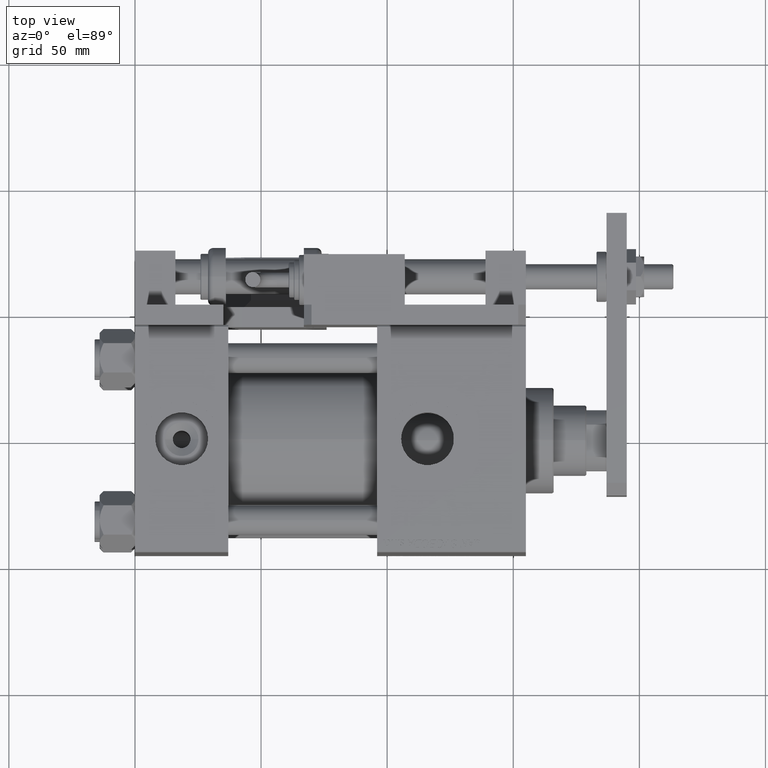
[diagram: clean part render]
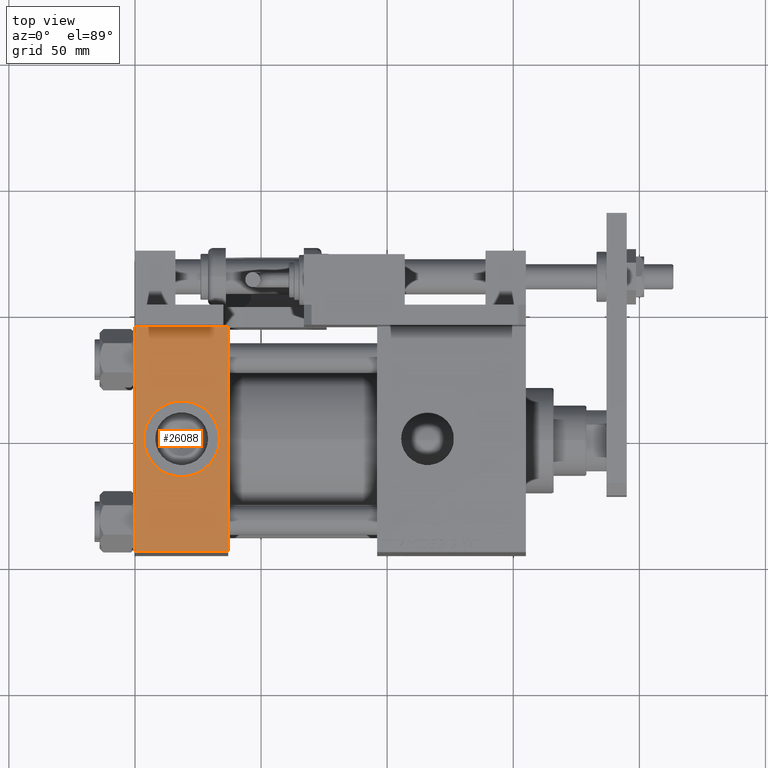
[diagram: same view with one face highlighted and labeled with its STEP entity id]
A machine part, top view. The second image highlights one B-rep face of the part: STEP entity #26088.
In plain terms, the highlighted planar face has unit normal (0, 0, -1).
Its self-contained STEP definition (entity closure, byte-faithful):
#907 = VERTEX_POINT ( 'NONE', #34932 ) ;
#1366 = EDGE_CURVE ( 'NONE', #907, #27341, #18172, .T. ) ;
#1577 = CARTESIAN_POINT ( 'NONE',  ( 18.50000000000000000, -1.214306433183764966E-14, 45.00000000000000000 ) ) ;
#5700 = ORIENTED_EDGE ( 'NONE', *, *, #52250, .T. ) ;
#5995 = ORIENTED_EDGE ( 'NONE', *, *, #49043, .T. ) ;
#7434 = AXIS2_PLACEMENT_3D ( 'NONE', #24788, #11210, #24228 ) ;
#10720 = VERTEX_POINT ( 'NONE', #42264 ) ;
#11210 = DIRECTION ( 'NONE',  ( 0.000000000000000000, 2.312964634635742957E-16, -1.000000000000000000 ) ) ;
#11486 = FACE_BOUND ( 'NONE', #46243, .T. ) ;
#11699 = LINE ( 'NONE', #38289, #38483 ) ;
#12017 = CARTESIAN_POINT ( 'NONE',  ( 0.000000000000000000, 44.49999999999997158, 45.00000000000000711 ) ) ;
#13368 = DIRECTION ( 'NONE',  ( 0.000000000000000000, -1.000000000000000000, -2.312964634635742957E-16 ) ) ;
#14056 = DIRECTION ( 'NONE',  ( 1.000000000000000000, 0.000000000000000000, 0.000000000000000000 ) ) ;
#16710 = ORIENTED_EDGE ( 'NONE', *, *, #45123, .F. ) ;
#16804 = DIRECTION ( 'NONE',  ( 0.000000000000000000, -1.000000000000000000, -2.312964634635742957E-16 ) ) ;
#18172 = LINE ( 'NONE', #52642, #54932 ) ;
#18307 = CARTESIAN_POINT ( 'NONE',  ( 18.50000000000000000, -1.214306433183764966E-14, 45.00000000000000000 ) ) ;
#18655 = CARTESIAN_POINT ( 'NONE',  ( 0.000000000000000000, -44.49999999999997158, 44.99999999999998579 ) ) ;
#19315 = EDGE_CURVE ( 'NONE', #10720, #38913, #55956, .T. ) ;
#21297 = CARTESIAN_POINT ( 'NONE',  ( 37.00000000000000000, -44.50000000000000000, 44.99999999999998579 ) ) ;
#22416 = CARTESIAN_POINT ( 'NONE',  ( 3.499999999999997780, -1.030609413311661928E-14, 45.00000000000000000 ) ) ;
#24228 = DIRECTION ( 'NONE',  ( 0.000000000000000000, 1.000000000000000000, 2.312964634635742957E-16 ) ) ;
#24788 = CARTESIAN_POINT ( 'NONE',  ( 37.00000000000000000, 45.00000000000000000, 45.00000000000000711 ) ) ;
#25028 = DIRECTION ( 'NONE',  ( -1.000000000000000000, 0.000000000000000000, 0.000000000000000000 ) ) ;
#25130 = EDGE_LOOP ( 'NONE', ( #31744, #5700, #55650, #5995 ) ) ;
#26088 = ADVANCED_FACE ( 'NONE', ( #11486, #53908 ), #49937, .F. ) ;
#27341 = VERTEX_POINT ( 'NONE', #37319 ) ;
#29128 = AXIS2_PLACEMENT_3D ( 'NONE', #1577, #36678, #36397 ) ;
#30831 = ORIENTED_EDGE ( 'NONE', *, *, #19315, .F. ) ;
#31082 = VERTEX_POINT ( 'NONE', #48351 ) ;
#31744 = ORIENTED_EDGE ( 'NONE', *, *, #37438, .T. ) ;
#32879 = VECTOR ( 'NONE', #25028, 1000.000000000000000 ) ;
#34932 = CARTESIAN_POINT ( 'NONE',  ( 37.00000000000000000, 44.49999999999997158, 45.00000000000000711 ) ) ;
#36397 = DIRECTION ( 'NONE',  ( 1.000000000000000000, 0.000000000000000000, 0.000000000000000000 ) ) ;
#36678 = DIRECTION ( 'NONE',  ( 0.000000000000000000, 0.000000000000000000, 1.000000000000000000 ) ) ;
#37319 = CARTESIAN_POINT ( 'NONE',  ( 37.00000000000000000, -44.49999999999997158, 44.99999999999998579 ) ) ;
#37438 = EDGE_CURVE ( 'NONE', #31082, #44717, #11699, .T. ) ;
#38289 = CARTESIAN_POINT ( 'NONE',  ( 0.000000000000000000, 45.00000000000000000, 45.00000000000000711 ) ) ;
#38483 = VECTOR ( 'NONE', #16804, 1000.000000000000000 ) ;
#38913 = VERTEX_POINT ( 'NONE', #22416 ) ;
#41896 = VECTOR ( 'NONE', #41918, 1000.000000000000000 ) ;
#41918 = DIRECTION ( 'NONE',  ( 1.000000000000000000, 0.000000000000000000, 0.000000000000000000 ) ) ;
#42264 = CARTESIAN_POINT ( 'NONE',  ( 33.50000000000000000, -1.214306433183764966E-14, 45.00000000000000000 ) ) ;
#42768 = LINE ( 'NONE', #21297, #41896 ) ;
#44717 = VERTEX_POINT ( 'NONE', #18655 ) ;
#45123 = EDGE_CURVE ( 'NONE', #38913, #10720, #54378, .T. ) ;
#46243 = EDGE_LOOP ( 'NONE', ( #30831, #16710 ) ) ;
#48351 = CARTESIAN_POINT ( 'NONE',  ( 0.000000000000000000, 44.49999999999997158, 45.00000000000000711 ) ) ;
#49043 = EDGE_CURVE ( 'NONE', #907, #31082, #50749, .T. ) ;
#49937 = PLANE ( 'NONE',  #7434 ) ;
#50749 = LINE ( 'NONE', #12017, #32879 ) ;
#52250 = EDGE_CURVE ( 'NONE', #44717, #27341, #42768, .T. ) ;
#52642 = CARTESIAN_POINT ( 'NONE',  ( 37.00000000000000000, 45.00000000000000000, 45.00000000000000711 ) ) ;
#52776 = DIRECTION ( 'NONE',  ( 0.000000000000000000, 0.000000000000000000, 1.000000000000000000 ) ) ;
#53908 = FACE_OUTER_BOUND ( 'NONE', #25130, .T. ) ;
#54134 = AXIS2_PLACEMENT_3D ( 'NONE', #18307, #52776, #14056 ) ;
#54378 = CIRCLE ( 'NONE', #29128, 15.00000000000000355 ) ;
#54932 = VECTOR ( 'NONE', #13368, 1000.000000000000000 ) ;
#55650 = ORIENTED_EDGE ( 'NONE', *, *, #1366, .F. ) ;
#55956 = CIRCLE ( 'NONE', #54134, 15.00000000000000355 ) ;